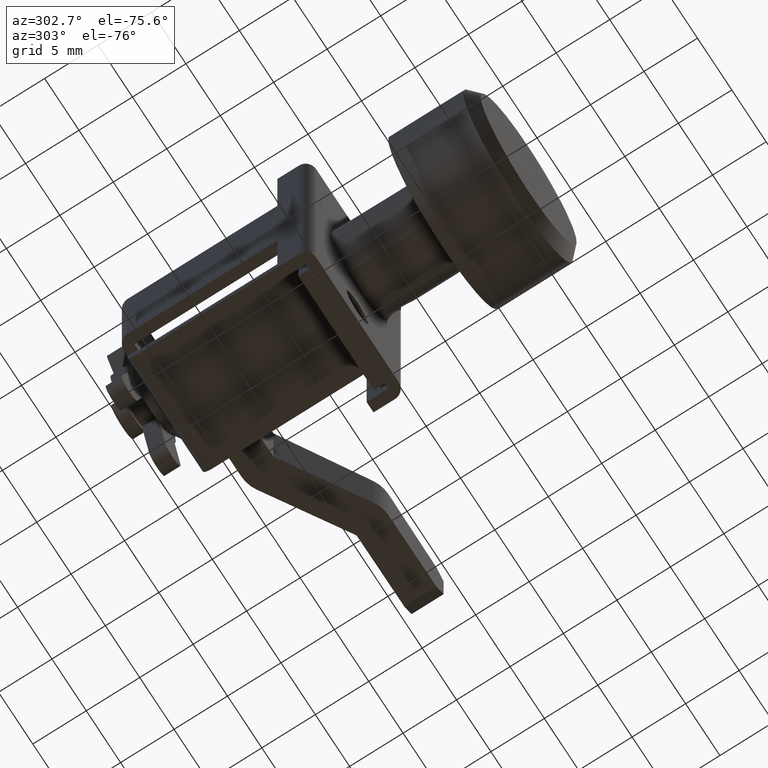
[diagram: clean part render]
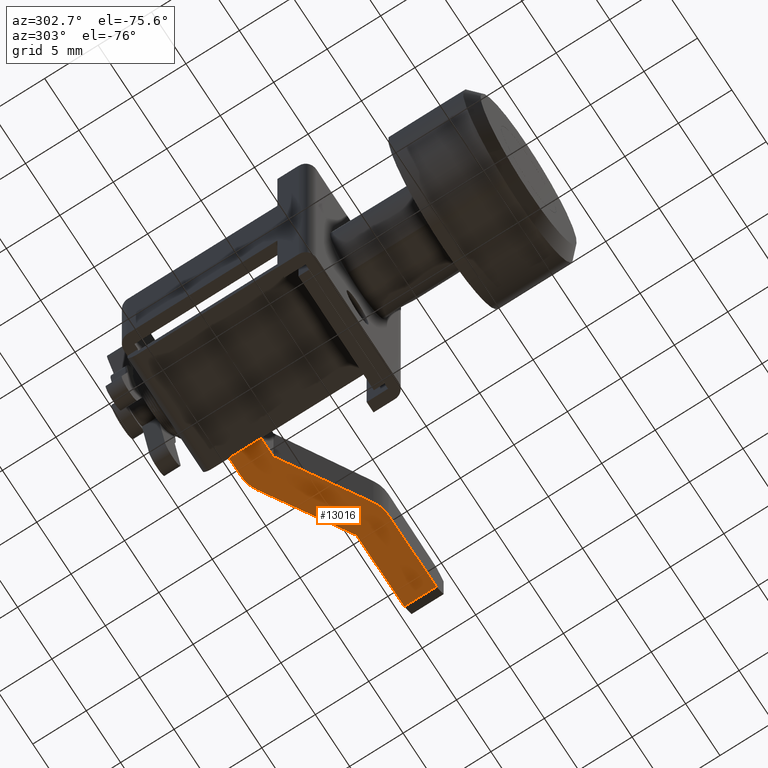
[diagram: same view with one face highlighted and labeled with its STEP entity id]
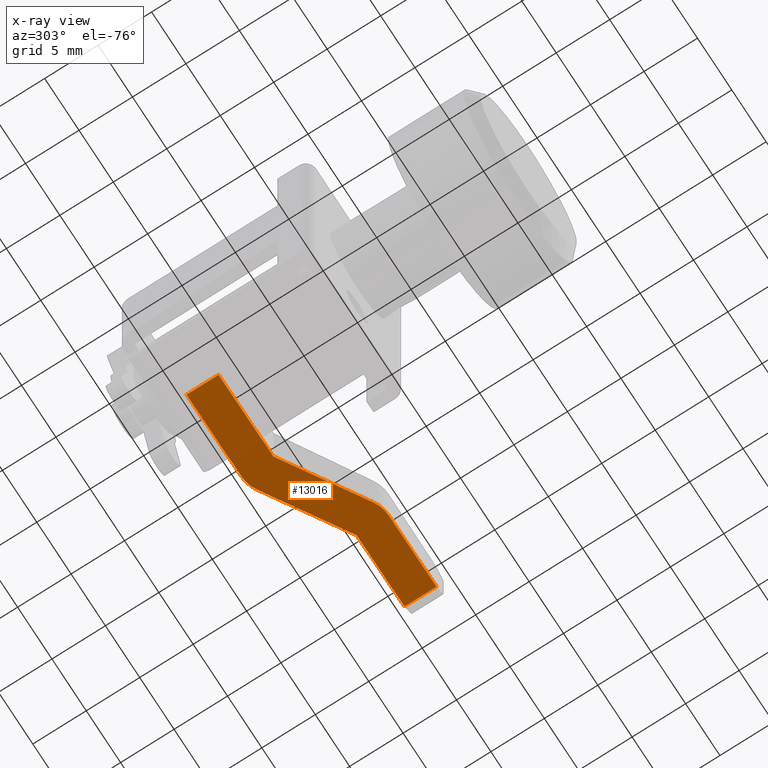
[diagram: x-ray of the same camera — body ghosted, the highlighted face saturated]
A machine part, auxiliary view. The second image highlights one B-rep face of the part: STEP entity #13016.
The next image is the same camera in x-ray: the body ghosted, the highlighted face saturated — about 0% of this face is hidden behind the body in this view.
In plain terms, the highlighted face is a freeform B-spline surface patch.
Its self-contained STEP definition (entity closure, byte-faithful):
#12782=CARTESIAN_POINT('',(8.000000000000101,-17.000997118886001,-3.320192906318890));
#12783=VERTEX_POINT('',#12782);
#12784=CARTESIAN_POINT('',(8.442488087636670,-15.432834876603950,-3.382897939487600));
#12785=VERTEX_POINT('',#12784);
#12786=CARTESIAN_POINT('',(8.000000000000101,-17.000997118886001,-3.320192906318890));
#12787=CARTESIAN_POINT('',(8.000000000000002,-16.154487601491883,-3.354041704571139));
#12788=CARTESIAN_POINT('',(8.442488087636670,-15.432834876603950,-3.382897939487600));
#12796=(BOUNDED_CURVE()B_SPLINE_CURVE(2,(#12786,#12787,#12788),.UNSPECIFIED.,.F.,.U.)CURVE()GEOMETRIC_REPRESENTATION_ITEM()QUASI_UNIFORM_CURVE()RATIONAL_B_SPLINE_CURVE((1.0,0.962419859205887,1.0))REPRESENTATION_ITEM(''));
#12797=EDGE_CURVE('',#12783,#12785,#12796,.T.);
#12843=CARTESIAN_POINT('',(16.0,-8.000633576558521,-3.680084299718460));
#12844=VERTEX_POINT('',#12843);
#12845=CARTESIAN_POINT('',(15.557358561332901,-9.569045891218760,-3.617369267076305));
#12846=VERTEX_POINT('',#12845);
#12847=CARTESIAN_POINT('',(16.0,-8.000633576558521,-3.680084299718445));
#12848=CARTESIAN_POINT('',(16.000000000000004,-8.847301448003600,-3.646229169470871));
#12849=CARTESIAN_POINT('',(15.557358561332901,-9.569045891218760,-3.617369267076305));
#12857=(BOUNDED_CURVE()B_SPLINE_CURVE(2,(#12847,#12848,#12849),.UNSPECIFIED.,.F.,.U.)CURVE()GEOMETRIC_REPRESENTATION_ITEM()QUASI_UNIFORM_CURVE()RATIONAL_B_SPLINE_CURVE((1.0,0.962406580863202,1.0))REPRESENTATION_ITEM(''));
#12858=EDGE_CURVE('',#12844,#12846,#12857,.T.);
#12910=CARTESIAN_POINT('',(16.0,-0.000004336142126,-3.999999999997185));
#12911=VERTEX_POINT('',#12910);
#12929=CARTESIAN_POINT('',(13.000000000000121,-0.000004336142126,-3.999999999997185));
#12930=VERTEX_POINT('',#12929);
#12931=CARTESIAN_POINT('',(13.000000000000121,-0.000004336142126,-3.999999999997185));
#12932=CARTESIAN_POINT('',(16.0,-0.000004336142126,-3.999999999997185));
#12933=QUASI_UNIFORM_CURVE('',1,(#12931,#12932),.UNSPECIFIED.,.F.,.U.);
#12934=EDGE_CURVE('',#12930,#12911,#12933,.T.);
#12963=CARTESIAN_POINT('',(7.600400015505660,1.196707470390418,-4.047852098140250));
#12964=CARTESIAN_POINT('',(7.600400015505660,-25.154912039901671,-2.994147876161473));
#12965=CARTESIAN_POINT('',(16.399600199071170,1.196707470390418,-4.047852098140250));
#12966=CARTESIAN_POINT('',(16.399600199071170,-25.154912039901671,-2.994147876161473));
#12967=B_SPLINE_SURFACE_WITH_KNOTS('',1,1,((#12963,#12965),(#12964,#12966)),.UNSPECIFIED.,.F.,.F.,.U.,(2,2),(2,2),(0.0,26.372677971768859),(0.0,8.799200183565507),.UNSPECIFIED.);
#12968=CARTESIAN_POINT('',(16.0,-0.000004336142126,-3.999999999997185));
#12969=CARTESIAN_POINT('',(16.0,-8.000633576558521,-3.680084299718460));
#12970=QUASI_UNIFORM_CURVE('',1,(#12968,#12969),.UNSPECIFIED.,.F.,.U.);
#12971=EDGE_CURVE('',#12911,#12844,#12970,.T.);
#12972=ORIENTED_EDGE('',*,*,#12971,.T.);
#12973=ORIENTED_EDGE('',*,*,#12858,.T.);
#12974=CARTESIAN_POINT('',(11.0,-17.0,-3.320232777431290));
#12975=VERTEX_POINT('',#12974);
#12976=CARTESIAN_POINT('',(11.0,-17.0,-3.320232777431290));
#12977=CARTESIAN_POINT('',(15.557358561332901,-9.569045891218760,-3.617369267076305));
#12978=QUASI_UNIFORM_CURVE('',1,(#12976,#12977),.UNSPECIFIED.,.F.,.U.);
#12979=EDGE_CURVE('',#12975,#12846,#12978,.T.);
#12980=ORIENTED_EDGE('',*,*,#12979,.F.);
#12981=CARTESIAN_POINT('',(11.000000000000121,-23.958199590760248,-3.042000000000100));
#12982=VERTEX_POINT('',#12981);
#12983=CARTESIAN_POINT('',(11.000000000000121,-23.958199590760248,-3.042000000000100));
#12984=CARTESIAN_POINT('',(11.0,-17.0,-3.320232777431290));
#12985=QUASI_UNIFORM_CURVE('',1,(#12983,#12984),.UNSPECIFIED.,.F.,.U.);
#12986=EDGE_CURVE('',#12982,#12975,#12985,.T.);
#12987=ORIENTED_EDGE('',*,*,#12986,.F.);
#12988=CARTESIAN_POINT('',(8.000000000000119,-23.958199590760248,-3.042000000000100));
#12989=VERTEX_POINT('',#12988);
#12990=CARTESIAN_POINT('',(8.000000000000119,-23.958199590760248,-3.042000000000100));
#12991=CARTESIAN_POINT('',(11.000000000000121,-23.958199590760248,-3.042000000000100));
#12992=QUASI_UNIFORM_CURVE('',1,(#12990,#12991),.UNSPECIFIED.,.F.,.U.);
#12993=EDGE_CURVE('',#12989,#12982,#12992,.T.);
#12994=ORIENTED_EDGE('',*,*,#12993,.F.);
#12995=CARTESIAN_POINT('',(8.000000000000101,-17.000997118886001,-3.320192906318890));
#12996=CARTESIAN_POINT('',(8.000000000000119,-23.958199590760248,-3.042000000000100));
#12997=QUASI_UNIFORM_CURVE('',1,(#12995,#12996),.UNSPECIFIED.,.F.,.U.);
#12998=EDGE_CURVE('',#12783,#12989,#12997,.T.);
#12999=ORIENTED_EDGE('',*,*,#12998,.F.);
#13000=ORIENTED_EDGE('',*,*,#12797,.T.);
#13001=CARTESIAN_POINT('',(13.0,-8.0,-3.680109634112045));
#13002=VERTEX_POINT('',#13001);
#13003=CARTESIAN_POINT('',(13.0,-8.0,-3.680109634112045));
#13004=CARTESIAN_POINT('',(8.442488087636670,-15.432834876603950,-3.382897939487600));
#13005=QUASI_UNIFORM_CURVE('',1,(#13003,#13004),.UNSPECIFIED.,.F.,.U.);
#13006=EDGE_CURVE('',#13002,#12785,#13005,.T.);
#13007=ORIENTED_EDGE('',*,*,#13006,.F.);
#13008=CARTESIAN_POINT('',(13.000000000000121,-0.000004336142126,-3.999999999997185));
#13009=CARTESIAN_POINT('',(13.0,-8.0,-3.680109634112045));
#13010=QUASI_UNIFORM_CURVE('',1,(#13008,#13009),.UNSPECIFIED.,.F.,.U.);
#13011=EDGE_CURVE('',#12930,#13002,#13010,.T.);
#13012=ORIENTED_EDGE('',*,*,#13011,.F.);
#13013=ORIENTED_EDGE('',*,*,#12934,.T.);
#13014=EDGE_LOOP('',(#12972,#12973,#12980,#12987,#12994,#12999,#13000,#13007,#13012,#13013));
#13015=FACE_OUTER_BOUND('',#13014,.T.);
#13016=ADVANCED_FACE('',(#13015),#12967,.F.);